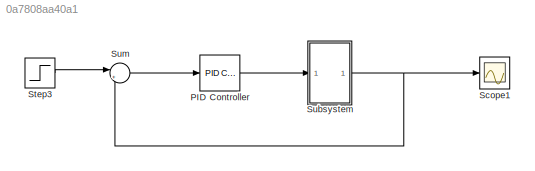
MODEL slx_0a7808aa40a1
KIND model
CONFIG AbsTol = auto
CONFIG EnableMultiTasking = off
CONFIG FixedStep = 0.001
CONFIG MaxStep = auto
CONFIG MinStep = auto
CONFIG RelTol = 1e-3
CONFIG SampleTimeConstraint = Unconstrained
CONFIG SolverName = FixedStepAuto
CONFIG StartTime = 0.0
CONFIG StopTime = 5
BLOCK [Reference] PID Controller  REF=pid_lib/PID Controller
  Ports = [1, 1]
  SourceBlock = pid_lib/PID Controller
  SourceProductBaseCode = SL
  SourceType = PID 1dof
BLOCK [Scope] Scope1
  Floating = off
  NumInputPorts = 1
  Ports = [1]
  ScopeSpecificationString = Simulink.scopes.TimeScopeBlockCfg('CurrentConfiguration', extmgr.ConfigurationSet(extmgr.Configuration('Core','General UI',true),extmgr.Configuration('Core','Source UI',true),extmgr.Configuration('Sources','WiredSimulink',true,'DataLoggingVariableName','ScopeData1'),extmgr.Configuration('Visuals','Time Domain',true,'SerializedDisplays',{struct('MinYLimReal','8.56368','MaxYLimReal','8.66686','YLabe...<+1366ch>
BLOCK [Step] Step3
  After = 8.674
  Before = 8.574
  SampleTime = 0
  Time = 0
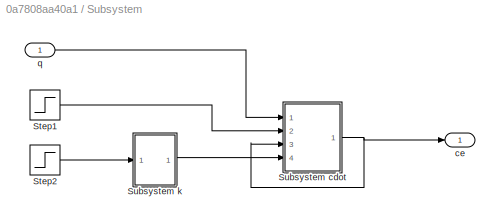
BLOCK [SubSystem] Subsystem
  Ports = [1, 1]
  RequestExecContextInheritance = off
BLOCK [Step] Subsystem/Step1
  After = ci
  Before = ci
  SampleTime = 0
  Time = 0
BLOCK [Step] Subsystem/Step2
  After = Ti
  Before = Ti
  SampleTime = 0
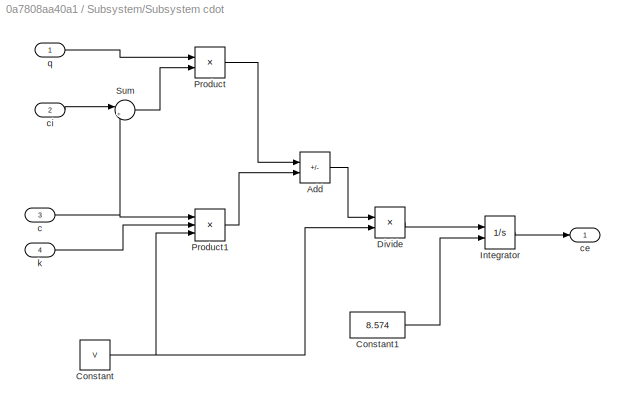
BLOCK [SubSystem] Subsystem/Subsystem cdot
  Ports = [4, 1]
  RequestExecContextInheritance = off
BLOCK [Sum] Subsystem/Subsystem cdot/Add
  IconShape = rectangular
  Inputs = +-
  Ports = [2, 1]
BLOCK [Constant] Subsystem/Subsystem cdot/Constant
  Value = V
BLOCK [Constant] Subsystem/Subsystem cdot/Constant1
  Value = 8.574
BLOCK [Product] Subsystem/Subsystem cdot/Divide
  Inputs = */
  Ports = [2, 1]
BLOCK [Integrator] Subsystem/Subsystem cdot/Integrator
  InitialConditionSource = external
  Ports = [2, 1]
BLOCK [Product] Subsystem/Subsystem cdot/Product
  Ports = [2, 1]
BLOCK [Product] Subsystem/Subsystem cdot/Product1
  Inputs = 3
  Ports = [3, 1]
BLOCK [Sum] Subsystem/Subsystem cdot/Sum
  Inputs = |+-
  Ports = [2, 1]
BLOCK [Inport] Subsystem/Subsystem cdot/c
  Port = 3
BLOCK [Outport] Subsystem/Subsystem cdot/ce
BLOCK [Inport] Subsystem/Subsystem cdot/ci
  Port = 2
BLOCK [Inport] Subsystem/Subsystem cdot/k
  Port = 4
BLOCK [Inport] Subsystem/Subsystem cdot/q
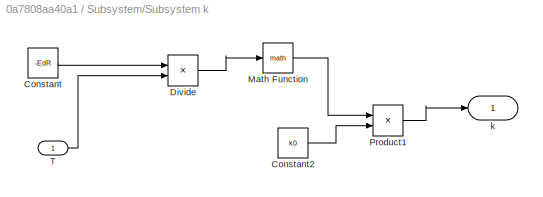
BLOCK [SubSystem] Subsystem/Subsystem k
  Ports = [1, 1]
  RequestExecContextInheritance = off
BLOCK [Constant] Subsystem/Subsystem k/Constant
  Value = -EdR
BLOCK [Constant] Subsystem/Subsystem k/Constant2
  Value = k0
BLOCK [Product] Subsystem/Subsystem k/Divide
  Inputs = */
  Ports = [2, 1]
BLOCK [Math] Subsystem/Subsystem k/Math Function
  Ports = [1, 1]
BLOCK [Product] Subsystem/Subsystem k/Product1
  Ports = [2, 1]
BLOCK [Inport] Subsystem/Subsystem k/T
BLOCK [Outport] Subsystem/Subsystem k/k
BLOCK [Outport] Subsystem/ce
BLOCK [Inport] Subsystem/q
BLOCK [Sum] Sum
  Inputs = |+-
  Ports = [2, 1]
LINE PID Controller:1 -> Subsystem:1
LINE Step3:1 -> Sum:1
LINE Subsystem/Step1:1 -> Subsystem/Subsystem cdot:2
LINE Subsystem/Step2:1 -> Subsystem/Subsystem k:1
LINE Subsystem/Subsystem cdot/Add:1 -> Subsystem/Subsystem cdot/Divide:1
LINE Subsystem/Subsystem cdot/Constant1:1 -> Subsystem/Subsystem cdot/Integrator:2
NET Subsystem/Subsystem cdot/Constant:1 -> Subsystem/Subsystem cdot/Divide:2, Subsystem/Subsystem cdot/Product1:3
LINE Subsystem/Subsystem cdot/Divide:1 -> Subsystem/Subsystem cdot/Integrator:1
LINE Subsystem/Subsystem cdot/Integrator:1 -> Subsystem/Subsystem cdot/ce:1
LINE Subsystem/Subsystem cdot/Product1:1 -> Subsystem/Subsystem cdot/Add:2
LINE Subsystem/Subsystem cdot/Product:1 -> Subsystem/Subsystem cdot/Add:1
LINE Subsystem/Subsystem cdot/Sum:1 -> Subsystem/Subsystem cdot/Product:2
NET Subsystem/Subsystem cdot/c:1 -> Subsystem/Subsystem cdot/Product1:1, Subsystem/Subsystem cdot/Sum:2
LINE Subsystem/Subsystem cdot/ci:1 -> Subsystem/Subsystem cdot/Sum:1
LINE Subsystem/Subsystem cdot/k:1 -> Subsystem/Subsystem cdot/Product1:2
LINE Subsystem/Subsystem cdot/q:1 -> Subsystem/Subsystem cdot/Product:1
NET Subsystem/Subsystem cdot:1 -> Subsystem/Subsystem cdot:3, Subsystem/ce:1
LINE Subsystem/Subsystem k/Constant2:1 -> Subsystem/Subsystem k/Product1:2
LINE Subsystem/Subsystem k/Constant:1 -> Subsystem/Subsystem k/Divide:1
LINE Subsystem/Subsystem k/Divide:1 -> Subsystem/Subsystem k/Math Function:1
LINE Subsystem/Subsystem k/Math Function:1 -> Subsystem/Subsystem k/Product1:1
LINE Subsystem/Subsystem k/Product1:1 -> Subsystem/Subsystem k/k:1
LINE Subsystem/Subsystem k/T:1 -> Subsystem/Subsystem k/Divide:2
LINE Subsystem/Subsystem k:1 -> Subsystem/Subsystem cdot:4
LINE Subsystem/q:1 -> Subsystem/Subsystem cdot:1
NET Subsystem:1 -> Scope1:1, Sum:2
LINE Sum:1 -> PID Controller:1
note: NET lines group one-source signal fan-out (src -> all destinations, sorted); 1:1 wires keep LINE
